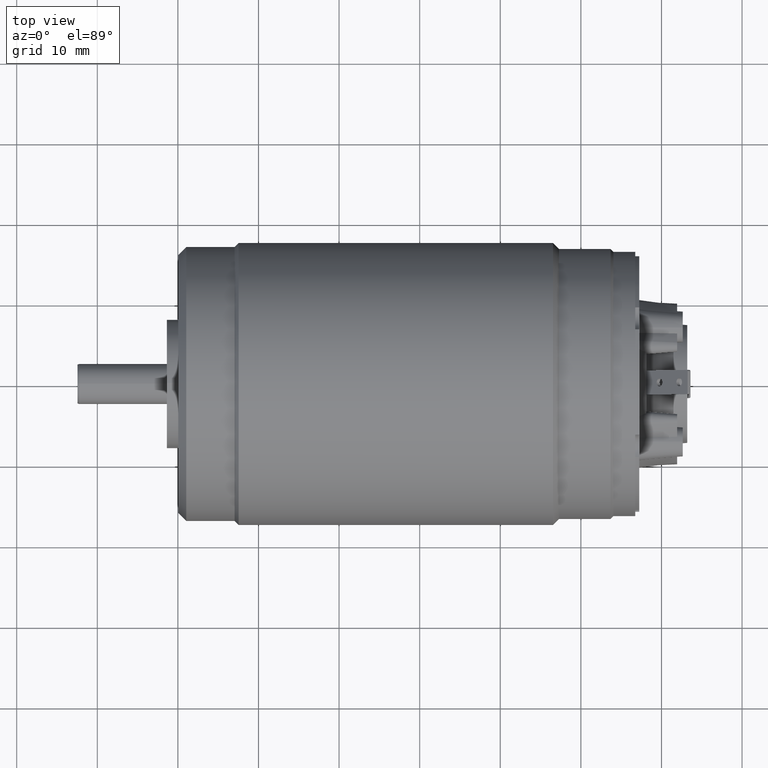
[diagram: clean part render]
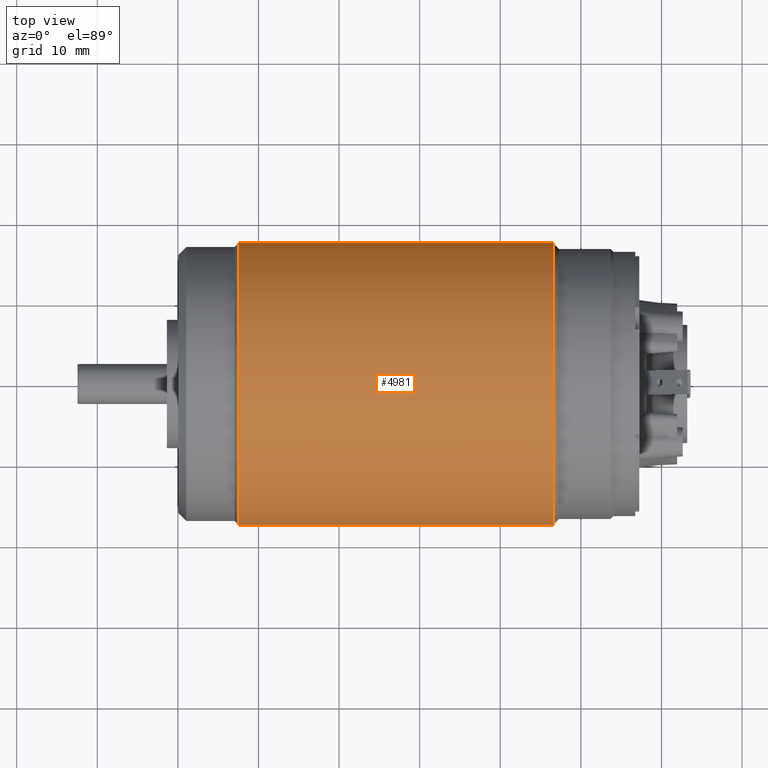
[diagram: same view with one face highlighted and labeled with its STEP entity id]
A machine part, top view. The second image highlights one B-rep face of the part: STEP entity #4981.
In plain terms, the highlighted cylindrical surface (partial cylindrical patch) has radius 17.5 mm, axis along (-1, 0, 0).
Its self-contained STEP definition (entity closure, byte-faithful):
#1101=DIRECTION('',(-1.E0,0.E0,0.E0));
#1102=VECTOR('',#1101,3.9E1);
#1103=CARTESIAN_POINT('',(-3.46E0,1.75E1,0.E0));
#1104=LINE('',#1103,#1102);
#1105=CARTESIAN_POINT('',(-3.46E0,0.E0,0.E0));
#1106=DIRECTION('',(1.E0,0.E0,0.E0));
#1107=DIRECTION('',(0.E0,1.E0,0.E0));
#1108=AXIS2_PLACEMENT_3D('',#1105,#1106,#1107);
#1110=DIRECTION('',(-1.E0,0.E0,0.E0));
#1111=VECTOR('',#1110,3.9E1);
#1112=CARTESIAN_POINT('',(-3.46E0,-1.75E1,0.E0));
#1113=LINE('',#1112,#1111);
#1128=CARTESIAN_POINT('',(-4.246E1,0.E0,0.E0));
#1129=DIRECTION('',(1.E0,0.E0,0.E0));
#1130=DIRECTION('',(0.E0,1.E0,0.E0));
#1131=AXIS2_PLACEMENT_3D('',#1128,#1129,#1130);
#3348=CARTESIAN_POINT('',(-3.46E0,1.75E1,0.E0));
#3349=VERTEX_POINT('',#3348);
#3350=CARTESIAN_POINT('',(-4.246E1,1.75E1,0.E0));
#3351=VERTEX_POINT('',#3350);
#3366=CARTESIAN_POINT('',(-3.46E0,-1.75E1,0.E0));
#3367=VERTEX_POINT('',#3366);
#3368=CARTESIAN_POINT('',(-4.246E1,-1.75E1,0.E0));
#3369=VERTEX_POINT('',#3368);
#4967=CARTESIAN_POINT('',(9.575E0,0.E0,0.E0));
#4968=DIRECTION('',(-1.E0,0.E0,0.E0));
#4969=DIRECTION('',(0.E0,1.E0,0.E0));
#4970=AXIS2_PLACEMENT_3D('',#4967,#4968,#4969);
#4971=CYLINDRICAL_SURFACE('',#4970,1.75E1);
#4973=ORIENTED_EDGE('',*,*,#4972,.F.);
#4974=ORIENTED_EDGE('',*,*,#4962,.T.);
#4976=ORIENTED_EDGE('',*,*,#4975,.T.);
#4978=ORIENTED_EDGE('',*,*,#4977,.F.);
#4979=EDGE_LOOP('',(#4973,#4974,#4976,#4978));
#4980=FACE_OUTER_BOUND('',#4979,.F.);
#4981=ADVANCED_FACE('',(#4980),#4971,.T.);
#1109=CIRCLE('',#1108,1.75E1);
#1132=CIRCLE('',#1131,1.75E1);
#4962=EDGE_CURVE('',#3349,#3367,#1109,.T.);
#4972=EDGE_CURVE('',#3349,#3351,#1104,.T.);
#4975=EDGE_CURVE('',#3367,#3369,#1113,.T.);
#4977=EDGE_CURVE('',#3351,#3369,#1132,.T.);